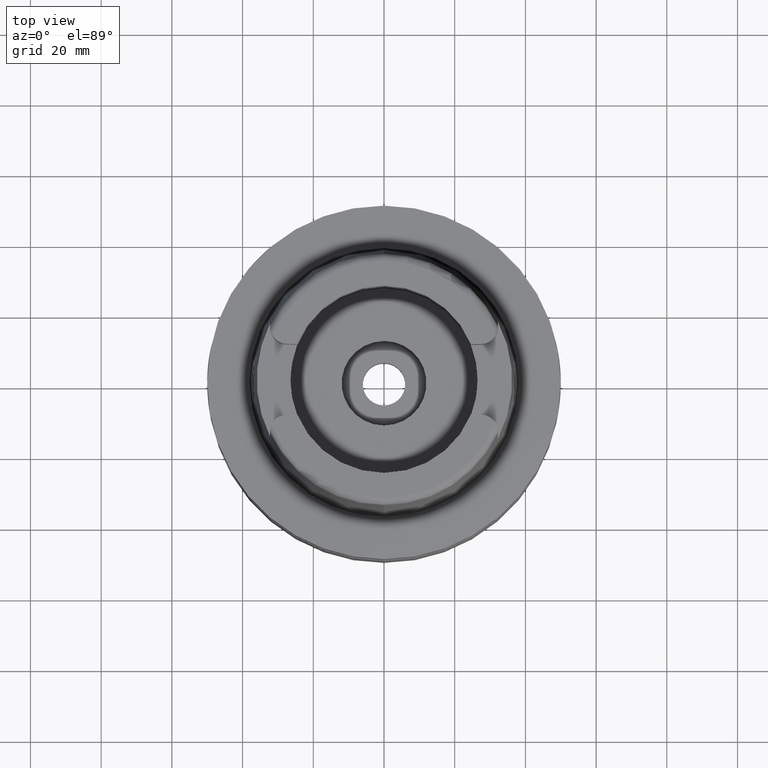
[diagram: clean part render]
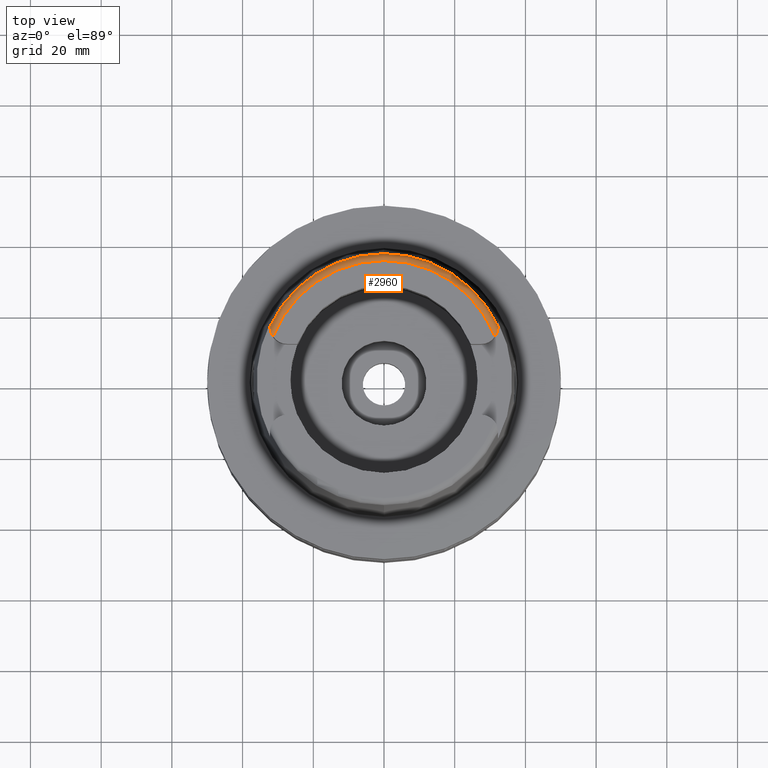
[diagram: same view with one face highlighted and labeled with its STEP entity id]
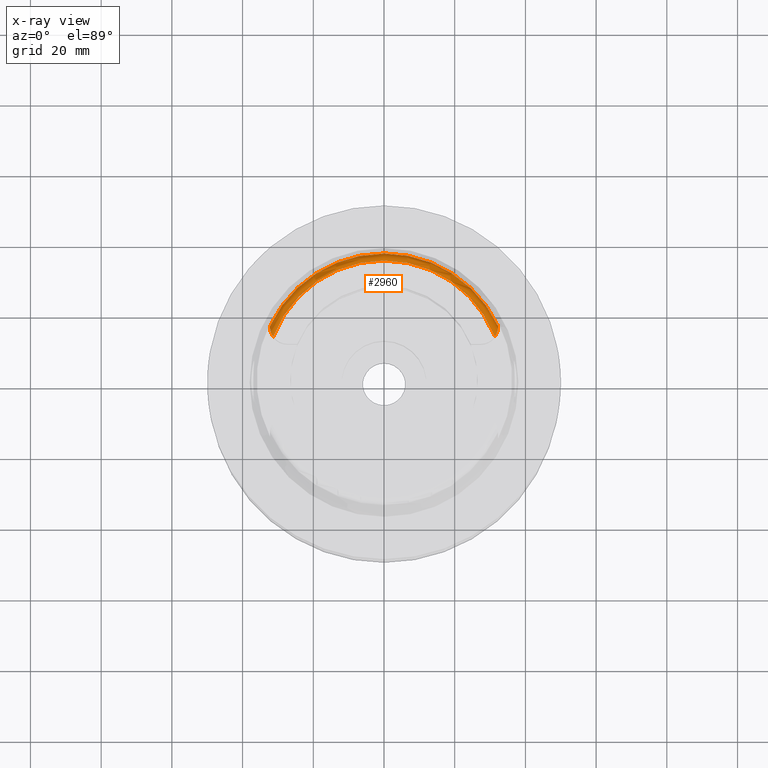
[diagram: x-ray of the same camera — body ghosted, the highlighted face saturated]
A machine part, top view. The second image highlights one B-rep face of the part: STEP entity #2960.
The next image is the same camera in x-ray: the body ghosted, the highlighted face saturated — about 0% of this face is hidden behind the body in this view.
In plain terms, the highlighted toroidal blend (fillet) surface has major radius 33.5974 mm and minor (blend) radius 2 mm.
Its self-contained STEP definition (entity closure, byte-faithful):
#338=CARTESIAN_POINT('',(-3.135385269249E1,1.207161079257E1,5.E1));
#339=CARTESIAN_POINT('',(-3.142384301030E1,1.217054358558E1,5.E1));
#340=CARTESIAN_POINT('',(-3.156397664510E1,1.238360030847E1,4.998527605794E1));
#341=CARTESIAN_POINT('',(-3.177206954587E1,1.276811967324E1,4.990414090614E1));
#342=CARTESIAN_POINT('',(-3.194476266820E1,1.317284913286E1,4.976722263908E1));
#343=CARTESIAN_POINT('',(-3.207413161354E1,1.357172189038E1,4.958776688409E1));
#344=CARTESIAN_POINT('',(-3.215880540878E1,1.393037826148E1,4.938867896806E1));
#345=CARTESIAN_POINT('',(-3.221031695383E1,1.424613317849E1,4.917920564263E1));
#346=CARTESIAN_POINT('',(-3.223753805710E1,1.451399767665E1,4.896673857260E1));
#347=CARTESIAN_POINT('',(-3.224877694950E1,1.473433313515E1,4.875226149976E1));
#348=CARTESIAN_POINT('',(-3.225E1,1.484386817661E1,4.861414238563E1));
#349=CARTESIAN_POINT('',(-3.225E1,1.489E1,4.854599893822E1));
#354=CARTESIAN_POINT('',(-3.225E1,1.489E1,4.854599893822E1));
#355=CARTESIAN_POINT('',(-3.225E1,1.492403361615E1,4.849572631161E1));
#356=CARTESIAN_POINT('',(-3.224999932242E1,1.498178636179E1,4.839529260808E1));
#357=CARTESIAN_POINT('',(-3.225000237151E1,1.503948071670E1,4.824395625100E1));
#358=CARTESIAN_POINT('',(-3.224999491818E1,1.505884290957E1,4.814748611609E1));
#359=CARTESIAN_POINT('',(-3.224999491818E1,1.506448545478E1,4.809972709306E1));
#364=CARTESIAN_POINT('',(0.E0,1.812477262738E-14,4.809987853799E1));
#365=DIRECTION('',(0.E0,0.E0,-1.E0));
#366=DIRECTION('',(-9.060271525277E-1,4.232195634449E-1,0.E0));
#367=AXIS2_PLACEMENT_3D('',#364,#365,#366);
#372=CARTESIAN_POINT('',(0.E0,1.812477262738E-14,4.809987853799E1));
#373=DIRECTION('',(0.E0,0.E0,-1.E0));
#374=DIRECTION('',(0.E0,1.E0,0.E0));
#375=AXIS2_PLACEMENT_3D('',#372,#373,#374);
#380=CARTESIAN_POINT('',(0.E0,1.812477262738E-14,4.809987853799E1));
#381=DIRECTION('',(0.E0,0.E0,-1.E0));
#382=DIRECTION('',(5.943840407725E-4,9.999998233538E-1,0.E0));
#383=AXIS2_PLACEMENT_3D('',#380,#381,#382);
#388=CARTESIAN_POINT('',(3.225000552017E1,1.506439888022E1,4.810003663950E1));
#389=CARTESIAN_POINT('',(3.225000552017E1,1.505850283145E1,4.814994133997E1));
#390=CARTESIAN_POINT('',(3.224999742392E1,1.503785504518E1,4.825000302972E1));
#391=CARTESIAN_POINT('',(3.225000073602E1,1.497917596241E1,4.840030025026E1));
#392=CARTESIAN_POINT('',(3.225E1,1.492267754780E1,4.849772942281E1));
#393=CARTESIAN_POINT('',(3.225E1,1.489E1,4.854599893822E1));
#398=CARTESIAN_POINT('',(3.225E1,1.489E1,4.854599893822E1));
#399=CARTESIAN_POINT('',(3.225E1,1.484324410624E1,4.861506422879E1));
#400=CARTESIAN_POINT('',(3.224873238375E1,1.473256036877E1,4.875423081158E1));
#401=CARTESIAN_POINT('',(3.223739320308E1,1.451228608262E1,4.896816461375E1));
#402=CARTESIAN_POINT('',(3.221020813696E1,1.424548544966E1,4.917962571454E1));
#403=CARTESIAN_POINT('',(3.215881995491E1,1.393048687926E1,4.938860520315E1));
#404=CARTESIAN_POINT('',(3.207407007060E1,1.357138016824E1,4.958797792716E1));
#405=CARTESIAN_POINT('',(3.194427168892E1,1.317154641885E1,4.976773306308E1));
#406=CARTESIAN_POINT('',(3.177185873074E1,1.276772919781E1,4.990422506213E1));
#407=CARTESIAN_POINT('',(3.156373169260E1,1.238318842882E1,4.998533631747E1));
#408=CARTESIAN_POINT('',(3.142374984604E1,1.217041189593E1,5.E1));
#409=CARTESIAN_POINT('',(3.135385269249E1,1.207161079257E1,5.E1));
#436=CARTESIAN_POINT('',(0.E0,1.812477262738E-14,5.E1));
#437=DIRECTION('',(0.E0,0.E0,-1.E0));
#438=DIRECTION('',(-9.332215253018E-1,3.593015233942E-1,0.E0));
#439=AXIS2_PLACEMENT_3D('',#436,#437,#438);
#444=CARTESIAN_POINT('',(0.E0,1.812477262738E-14,5.E1));
#445=DIRECTION('',(0.E0,0.E0,-1.E0));
#446=DIRECTION('',(5.943840407718E-4,9.999998233538E-1,0.E0));
#447=AXIS2_PLACEMENT_3D('',#444,#445,#446);
#490=CARTESIAN_POINT('',(3.225000552017E1,1.506439888022E1,4.810003663950E1));
#2414=VERTEX_POINT('',#490);
#2415=CARTESIAN_POINT('',(2.115706598835E-2,3.559493660620E1,4.809987853799E1));
#2416=VERTEX_POINT('',#2415);
#2417=CARTESIAN_POINT('',(0.E0,3.559494289391E1,4.809987853799E1));
#2418=VERTEX_POINT('',#2417);
#2442=VERTEX_POINT('',#338);
#2443=VERTEX_POINT('',#349);
#2444=VERTEX_POINT('',#359);
#2445=VERTEX_POINT('',#393);
#2446=VERTEX_POINT('',#409);
#2447=CARTESIAN_POINT('',(1.996978118469E-2,3.359743244650E1,5.E1));
#2448=VERTEX_POINT('',#2447);
#2939=CARTESIAN_POINT('',(0.E0,1.812477262738E-14,4.8E1));
#2940=DIRECTION('',(0.E0,0.E0,-1.E0));
#2941=DIRECTION('',(-5.943840407722E-4,-9.999998233538E-1,0.E0));
#2942=AXIS2_PLACEMENT_3D('',#2939,#2940,#2941);
#2943=TOROIDAL_SURFACE('',#2942,3.359743838136E1,2.E0);
#2945=ORIENTED_EDGE('',*,*,#2944,.T.);
#2946=ORIENTED_EDGE('',*,*,#2931,.T.);
#2947=ORIENTED_EDGE('',*,*,#2890,.T.);
#2948=ORIENTED_EDGE('',*,*,#2779,.T.);
#2949=ORIENTED_EDGE('',*,*,#2777,.T.);
#2951=ORIENTED_EDGE('',*,*,#2950,.T.);
#2953=ORIENTED_EDGE('',*,*,#2952,.T.);
#2955=ORIENTED_EDGE('',*,*,#2954,.F.);
#2957=ORIENTED_EDGE('',*,*,#2956,.F.);
#2958=EDGE_LOOP('',(#2945,#2946,#2947,#2948,#2949,#2951,#2953,#2955,#2957));
#2959=FACE_OUTER_BOUND('',#2958,.F.);
#350=B_SPLINE_CURVE_WITH_KNOTS('',3,(#338,#339,#340,#341,#342,#343,#344,#345,
#346,#347,#348,#349),.UNSPECIFIED.,.F.,.F.,(4,1,1,1,1,1,1,1,1,4),(0.E0,
1.111111111111E-1,2.222222222222E-1,3.333333333333E-1,4.444444444444E-1,
5.555555555556E-1,6.666666666667E-1,7.777777777778E-1,8.888888888889E-1,1.E0),
.UNSPECIFIED.);
#360=B_SPLINE_CURVE_WITH_KNOTS('',3,(#354,#355,#356,#357,#358,#359),
.UNSPECIFIED.,.F.,.F.,(4,1,1,4),(0.E0,3.333333333333E-1,6.666666666667E-1,1.E0),
.UNSPECIFIED.);
#368=CIRCLE('',#367,3.559494289391E1);
#376=CIRCLE('',#375,3.559494289391E1);
#384=CIRCLE('',#383,3.559494289391E1);
#394=B_SPLINE_CURVE_WITH_KNOTS('',3,(#388,#389,#390,#391,#392,#393),
.UNSPECIFIED.,.F.,.F.,(4,1,1,4),(0.E0,3.333333333333E-1,6.666666666667E-1,1.E0),
.UNSPECIFIED.);
#410=B_SPLINE_CURVE_WITH_KNOTS('',3,(#398,#399,#400,#401,#402,#403,#404,#405,
#406,#407,#408,#409),.UNSPECIFIED.,.F.,.F.,(4,1,1,1,1,1,1,1,1,4),(0.E0,
1.111111111111E-1,2.222222222222E-1,3.333333333333E-1,4.444444444444E-1,
5.555555555556E-1,6.666666666667E-1,7.777777777778E-1,8.888888888889E-1,1.E0),
.UNSPECIFIED.);
#440=CIRCLE('',#439,3.359743838136E1);
#448=CIRCLE('',#447,3.359743838136E1);
#2777=EDGE_CURVE('',#2416,#2414,#384,.T.);
#2779=EDGE_CURVE('',#2418,#2416,#376,.T.);
#2890=EDGE_CURVE('',#2444,#2418,#368,.T.);
#2931=EDGE_CURVE('',#2443,#2444,#360,.T.);
#2944=EDGE_CURVE('',#2442,#2443,#350,.T.);
#2950=EDGE_CURVE('',#2414,#2445,#394,.T.);
#2952=EDGE_CURVE('',#2445,#2446,#410,.T.);
#2954=EDGE_CURVE('',#2448,#2446,#448,.T.);
#2956=EDGE_CURVE('',#2442,#2448,#440,.T.);
#2960=ADVANCED_FACE('',(#2959),#2943,.T.);